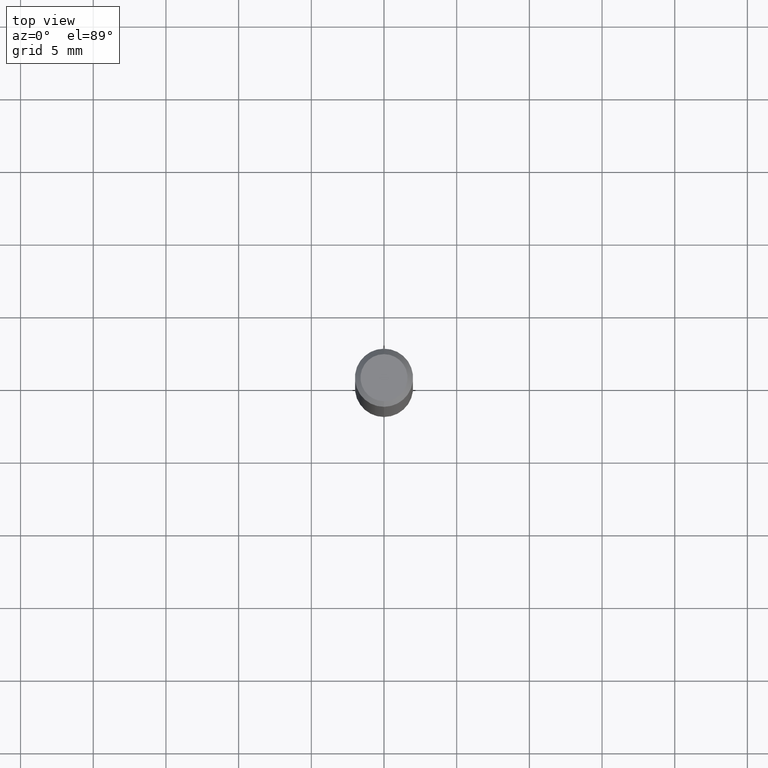
[diagram: clean part render]
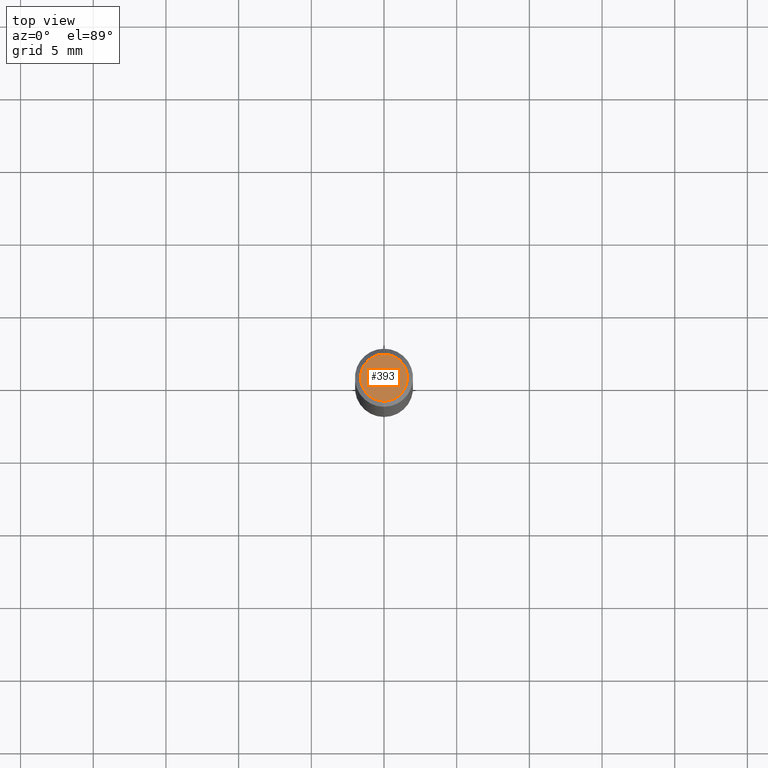
[diagram: same view with one face highlighted and labeled with its STEP entity id]
A machine part, top view. The second image highlights one B-rep face of the part: STEP entity #393.
In plain terms, the highlighted planar face has unit normal (0, -0, -1).
Its self-contained STEP definition (entity closure, byte-faithful):
#17 = FACE_OUTER_BOUND ( 'NONE', #278, .T. ) ;
#49 = DIRECTION ( 'NONE',  ( 6.982962677686265922E-15, 1.000000000000000000, -3.491412293971016589E-15 ) ) ;
#52 = CARTESIAN_POINT ( 'NONE',  ( 4.114564141767253566E-46, -5.874275137583690859E-32, -1.682492539688712788E-17 ) ) ;
#62 = CARTESIAN_POINT ( 'NONE',  ( -4.888104823412212925E-16, -0.06374999999999998723, 2.057526083437651208E-16 ) ) ;
#87 = PLANE ( 'NONE',  #241 ) ;
#121 = CIRCLE ( 'NONE', #407, 0.06374999999999998723 ) ;
#126 = VERTEX_POINT ( 'NONE', #271 ) ;
#131 = DIRECTION ( 'NONE',  ( -2.445517019961652946E-29, 3.491412293971016589E-15, 1.000000000000000000 ) ) ;
#160 = ORIENTED_EDGE ( 'NONE', *, *, #360, .T. ) ;
#222 = DIRECTION ( 'NONE',  ( -6.982962677686265922E-15, -1.000000000000000000, 3.491412293971016589E-15 ) ) ;
#241 = AXIS2_PLACEMENT_3D ( 'NONE', #246, #406, #49 ) ;
#246 = CARTESIAN_POINT ( 'NONE',  ( 4.451638707024993845E-16, 0.06374999999999998723, -2.309899964390958095E-16 ) ) ;
#271 = CARTESIAN_POINT ( 'NONE',  ( 4.975360907851465623E-16, 0.06374999999999998723, -2.394024591375393642E-16 ) ) ;
#278 = EDGE_LOOP ( 'NONE', ( #160, #434 ) ) ;
#285 = DIRECTION ( 'NONE',  ( -6.982962677686265922E-15, -1.000000000000000000, 3.491412293971016589E-15 ) ) ;
#328 = DIRECTION ( 'NONE',  ( -2.445517019961652946E-29, 3.491412293971016589E-15, 1.000000000000000000 ) ) ;
#360 = EDGE_CURVE ( 'NONE', #126, #480, #121, .T. ) ;
#368 = EDGE_CURVE ( 'NONE', #480, #126, #411, .T. ) ;
#393 = ADVANCED_FACE ( 'NONE', ( #17 ), #87, .F. ) ;
#406 = DIRECTION ( 'NONE',  ( 2.445517019961652385E-29, -3.491412293971016589E-15, -1.000000000000000000 ) ) ;
#407 = AXIS2_PLACEMENT_3D ( 'NONE', #493, #131, #222 ) ;
#411 = CIRCLE ( 'NONE', #507, 0.06374999999999998723 ) ;
#434 = ORIENTED_EDGE ( 'NONE', *, *, #368, .T. ) ;
#480 = VERTEX_POINT ( 'NONE', #62 ) ;
#493 = CARTESIAN_POINT ( 'NONE',  ( 4.114564141767253566E-46, -5.874275137583690859E-32, -1.682492539688712788E-17 ) ) ;
#507 = AXIS2_PLACEMENT_3D ( 'NONE', #52, #328, #285 ) ;